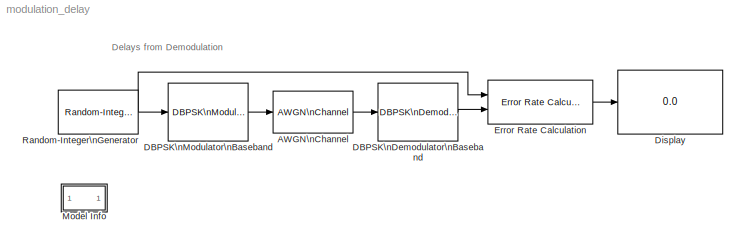
MODEL modulation_delay
KIND model
CONFIG AbsTol = auto
CONFIG FixedStep = auto
CONFIG MaxStep = auto
CONFIG MinStep = auto
CONFIG RelTol = 1e-3
CONFIG Solver = ode45
CONFIG SolverMode = Auto
CONFIG StartTime = 0.0
CONFIG StopTime = 100
BLOCK [Reference] AWGN\nChannel  REF=commchan2/AWGN\nChannel
  EsNodB = 4
  Ports = [1, 1]
  Ps = 1
  SNRdB = 10
  SourceBlock = commchan2/AWGN\nChannel
  SourceType = AWGN Channel
  Tsym = 1
  noiseMode = Signal to noise ratio  (Es/No)
  seed = 1237
  variance = 1
BLOCK [Reference] DBPSK\nDemodulator\nBaseband  REF=commdigbbndpm2/DBPSK\nDemodulator\nBaseband
  Ph = 0
  Ports = [1, 1]
  SourceBlock = commdigbbndpm2/DBPSK\nDemodulator\nBaseband
  SourceType = DBPSK Demodulator Baseband
  numSamp = 8
BLOCK [Reference] DBPSK\nModulator\nBaseband  REF=commdigbbndpm2/DBPSK\nModulator\nBaseband
  Ph = 0
  Ports = [1, 1]
  SourceBlock = commdigbbndpm2/DBPSK\nModulator\nBaseband
  SourceType = DBPSK Modulator Baseband
  numSamp = 8
BLOCK [Display] Display
  Decimation = 1
  Floating = off
  Format = short
  Ports = [1]
  SampleTime = -1
BLOCK [Reference] Error Rate Calculation  REF=commsink2/Error Rate Calculation
  N = 1
  PMode = Port
  Ports = [2, 1]
  RsMode2 = off
  SourceBlock = commsink2/Error Rate Calculation
  SourceType = Error Rate Calculation
  WsName = ErrorVec
  cp_mode = Entire frame
  st_delay = 1
  subframe = []
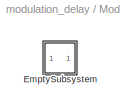
BLOCK [SubSystem] Model Info
  CopyFcn = slcm CopyBlock;
  DeleteFcn = slcm Cancel;
  InitFcn = slcm('UpdateAllCMBlocksInThisModelInit')
  LoadFcn = slcm LoadBlock;
  MaskCallbackString = ||||||||||||||||||||||||||||||
  MaskDescription = This block allows revision control information to be displayed within the model.
  MaskDisplay = text(str2num(LeftAlignmentValue), 0.5, MaskDisplayString, 'HorizontalAlignment', HorizontalTextAlignment)\n
  MaskEnableString = on,on,on,on,on,on,on,on,on,on,on,on,on,on,on,on,on,on,on,on,on,on,on,on,on,on,on,on,on,on,on
  MaskIconFrame = on
  MaskIconOpaque = on
  MaskIconRotate = none
  MaskIconUnits = normalized
  MaskPromptString = InitialSaveTempField|InitialBlockCM|BlockCM|Frame|SaveTempField|DisplayStringWithTags|MaskDisplayString|HorizontalTextAlignment|LeftAlignmentValue|SourceBlockDiagram|TagMaxNumber|CMTag1|CMTag2|CMTag3|CMTag4|CMTag5|CMTag6|CMTag7|CMTag8|CMTag9|CMTag10|CMTag11|CMTag12|CMTag13|CMTag14|CMTag15|CMTag16|CMTag17|CMTag18|CMTag19|CMTag20
  MaskSelfModifiable = on
  MaskStyleString = edit,edit,edit,edit,edit,edit,edit,edit,edit,edit,edit,edit,edit,edit,edit,edit,edit,edit,edit,edit,edit,edit,edit,edit,edit,edit,edit,edit,edit,edit,edit
  MaskTunableValueString = on,on,on,on,on,on,on,on,on,on,on,on,on,on,on,on,on,on,on,on,on,on,on,on,on,on,on,on,on,on,on
  MaskType = CMBlock
  MaskValueString = |none|none|on||Info|Info|Center|0.5|modulation_delay|20||||||||||||||||||||
  MaskVariables = InitialSaveTempField=&1;InitialBlockCM=&2;BlockCM=&3;Frame=&4;SaveTempField=&5;DisplayStringWithTags=&6;MaskDisplayString=&7;HorizontalTextAlignment=&8;LeftAlignmentValue=&9;SourceBlockDiagram=&10;TagMaxNumber=@11;CMTag1=&12;CMTag2=&13;CMTag3=&14;CMTag4=&15;CMTag5=&16;CMTag6=&17;CMTag7=&18;CMTag8=&19;CMTag9=&20;CMTag10=&21;CMTag11=&22;CMTag12=&23;CMTag13=&24;CMTag14=&25;CMTag15=&26;CMTag16=&27;CMT...<+45ch>
  MaskVisibilityString = off,off,off,off,off,off,off,off,off,off,off,off,off,off,off,off,off,off,off,off,off,off,off,off,off,off,off,off,off,off,off
  NameChangeFcn = slcm Rename;
  OpenFcn = commdemohelp;
  Ports = []
  PostSaveFcn = slcm('UpdateAllCMBlocksInThisModel')
  RTWFcnNameOpts = Auto
  RTWFileNameOpts = Auto
  RTWSystemCode = Auto
  ShowPortLabels = on
  TreatAsAtomicUnit = off
BLOCK [SubSystem] Model Info/EmptySubsystem
  Ports = []
  RTWFcnNameOpts = Auto
  RTWFileNameOpts = Auto
  RTWSystemCode = Auto
  ShowPortLabels = on
  TreatAsAtomicUnit = off
BLOCK [Reference] Random-Integer\nGenerator  REF=commsource2/Random-Integer\nGenerator
  Ports = [0, 1]
  SourceBlock = commsource2/Random-Integer\nGenerator
  SourceType = Random-Integer Generator
  Ts = 1
  frameBased = off
  mul = 2
  orient = off
  sampPerFrame = 1
  seed = 10711
LINE AWGN\nChannel:1 -> DBPSK\nDemodulator\nBaseband:1
LINE DBPSK\nDemodulator\nBaseband:1 -> Error Rate Calculation:2
LINE DBPSK\nModulator\nBaseband:1 -> AWGN\nChannel:1
LINE Error Rate Calculation:1 -> Display:1
NET Random-Integer\nGenerator:1 -> DBPSK\nModulator\nBaseband:1, Error Rate Calculation:1
note: NET lines group one-source signal fan-out (src -> all destinations, sorted); 1:1 wires keep LINE
